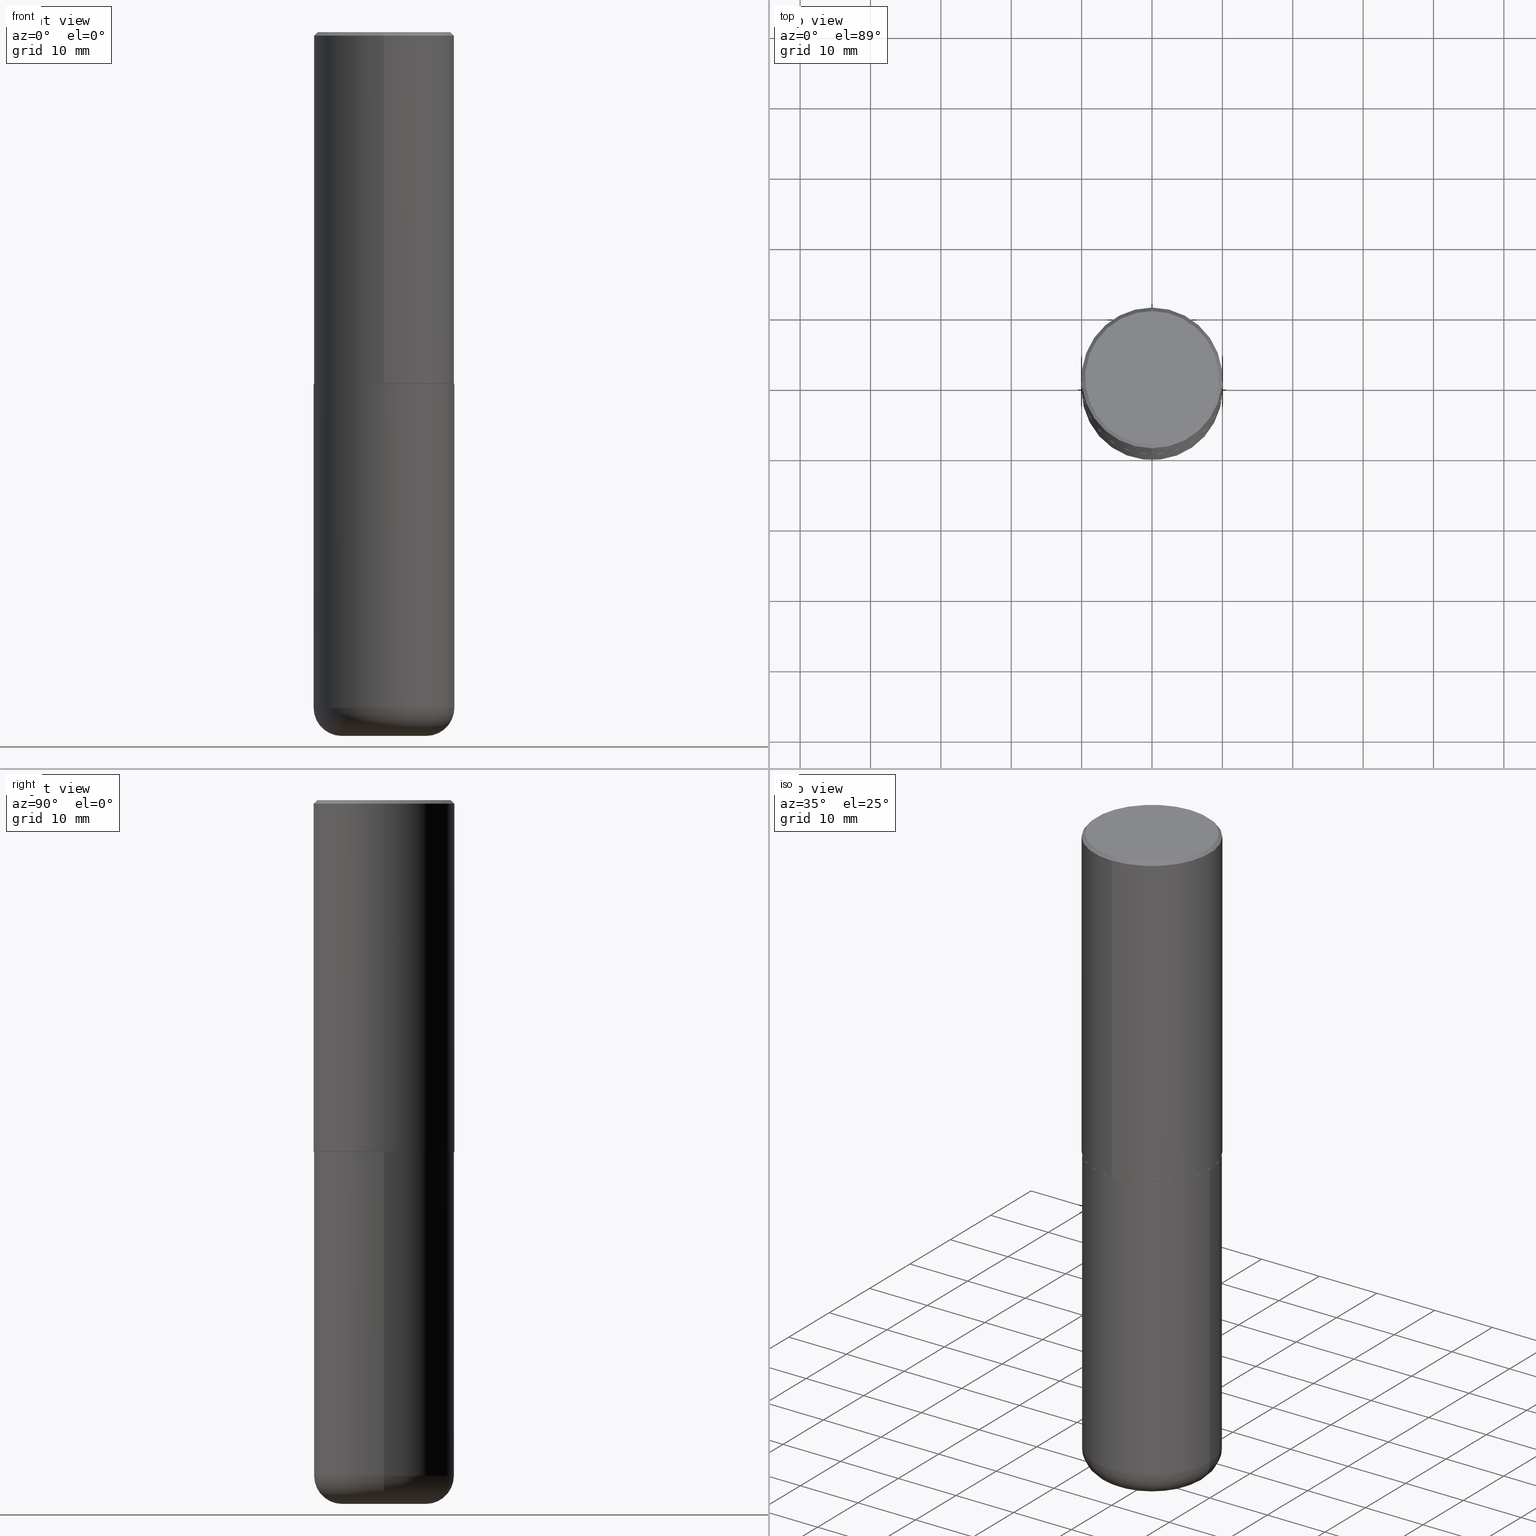
[diagram: canonical four-view strip — front | top / right | iso, engineering-drawing reading convention]
A machine part, canonical four-view strip (front | top / right | iso — engineering-drawing reading convention). The complete STEP part file that produces these views, byte-faithful:
ISO-10303-21;
HEADER;
FILE_DESCRIPTION (( 'STEP AP203' ),
    '1' );
FILE_NAME ('74812.STEP',
    '2024-05-02T19:20:29',
    ( '' ),
    ( '' ),
    'SwSTEP 2.0',
    'SolidWorks 2023',
    '' );
FILE_SCHEMA (( 'CONFIG_CONTROL_DESIGN' ));
ENDSEC;

DATA;
#1 = DIRECTION ( 'NONE',  ( -2.447902336346030930E-29, 3.487996385144809755E-15, 1.000000000000000000 ) ) ;
#2 = PERSON_AND_ORGANIZATION ( #285, #391 ) ;
#3 = CARTESIAN_POINT ( 'NONE',  ( -0.3936999999999999389, 2.797406750687513998E-15, -1.936584745033356455E-29 ) ) ;
#4 = LINE ( 'NONE', #3, #154 ) ;
#5 = FACE_OUTER_BOUND ( 'NONE', #20, .T. ) ;
#6 = CC_DESIGN_PERSON_AND_ORGANIZATION_ASSIGNMENT ( #166, #230, ( #67 ) ) ;
#7 = AXIS2_PLACEMENT_3D ( 'NONE', #355, #190, #319 ) ;
#8 = VERTEX_POINT ( 'NONE', #328 ) ;
#9 = FACE_OUTER_BOUND ( 'NONE', #177, .T. ) ;
#10 = APPROVAL_ROLE ( '' ) ;
#11 = APPLICATION_PROTOCOL_DEFINITION ( 'international standard', 'config_control_design', 1994, #121 ) ;
#12 = DATE_AND_TIME ( #316, #248 ) ;
#13 = DIRECTION ( 'NONE',  ( -2.445468806185136597E-29, 3.491481338843145583E-15, 1.000000000000000000 ) ) ;
#14 = ADVANCED_FACE ( 'NONE', ( #387 ), #93, .F. ) ;
#15 = DIRECTION ( 'NONE',  ( -2.447902336346030930E-29, 3.487996385144809755E-15, 1.000000000000000000 ) ) ;
#16 = EDGE_LOOP ( 'NONE', ( #162, #196, #290, #338 ) ) ;
#17 = VERTEX_POINT ( 'NONE', #155 ) ;
#18 = CIRCLE ( 'NONE', #219, 0.3937000000000001054 ) ;
#19 = CIRCLE ( 'NONE', #240, 0.3936999999999999389 ) ;
#20 = EDGE_LOOP ( 'NONE', ( #44, #86, #200, #47 ) ) ;
#21 = EDGE_LOOP ( 'NONE', ( #25, #348 ) ) ;
#22 = ORIENTED_EDGE ( 'NONE', *, *, #321, .T. ) ;
#23 = AXIS2_PLACEMENT_3D ( 'NONE', #249, #274, #401 ) ;
#24 = CARTESIAN_POINT ( 'NONE',  ( 4.818695749097161561E-29, -6.866120884157558352E-15, -1.968500000000000139 ) ) ;
#25 = ORIENTED_EDGE ( 'NONE', *, *, #263, .F. ) ;
#26 = DIRECTION ( 'NONE',  ( 2.447902336346030930E-29, -3.487996385144809360E-15, -1.000000000000000000 ) ) ;
#27 = DIRECTION ( 'NONE',  ( 1.000000000000000000, -6.982962677686265133E-15, 0.000000000000000000 ) ) ;
#28 = CARTESIAN_POINT ( 'NONE',  ( 2.749192406205084005E-15, 0.3937000000000000499, -0.02000000000000146105 ) ) ;
#29 = PLANE ( 'NONE',  #382 ) ;
#30 = CIRCLE ( 'NONE', #139, 0.3936999999999999389 ) ;
#31 = CIRCLE ( 'NONE', #78, 0.1575000000000003342 ) ;
#32 = DIRECTION ( 'NONE',  ( -2.445468806185136877E-29, 3.491481338843145188E-15, 1.000000000000000000 ) ) ;
#33 = EDGE_CURVE ( 'NONE', #17, #266, #18, .T. ) ;
#34 = DIRECTION ( 'NONE',  ( -6.982962677686265133E-15, -1.000000000000000000, 3.491137977679279029E-15 ) ) ;
#35 = DIRECTION ( 'NONE',  ( -6.982962677686266711E-15, -1.000000000000000000, 3.491481338843145583E-15 ) ) ;
#36 = CARTESIAN_POINT ( 'NONE',  ( 0.000000000000000000, 0.000000000000000000, 0.000000000000000000 ) ) ;
#37 =( CONVERSION_BASED_UNIT ( 'INCH', #308 ) LENGTH_UNIT ( ) NAMED_UNIT ( #58 ) );
#38 = AXIS2_PLACEMENT_3D ( 'NONE', #118, #97, #299 ) ;
#39 = CC_DESIGN_SECURITY_CLASSIFICATION ( #261, ( #69 ) ) ;
#40 = CARTESIAN_POINT ( 'NONE',  ( 4.813905344975441835E-29, -6.872981015512731707E-15, -1.968500000000000139 ) ) ;
#41 = DIRECTION ( 'NONE',  ( -6.982962677686265922E-15, -1.000000000000000000, 3.487996385144809360E-15 ) ) ;
#42 = EDGE_LOOP ( 'NONE', ( #379, #371 ) ) ;
#43 = EDGE_CURVE ( 'NONE', #383, #223, #62, .T. ) ;
#44 = ORIENTED_EDGE ( 'NONE', *, *, #263, .T. ) ;
#45 = PERSON_AND_ORGANIZATION ( #285, #391 ) ;
#46 = SHAPE_DEFINITION_REPRESENTATION ( #64, #52 ) ;
#47 = ORIENTED_EDGE ( 'NONE', *, *, #341, .F. ) ;
#48 = DIRECTION ( 'NONE',  ( 5.024295867788576727E-15, 0.7071067811866224018, 0.7071067811864726327 ) ) ;
#49 = APPROVAL_ROLE ( '' ) ;
#50 = DIRECTION ( 'NONE',  ( -4.851104656540950075E-15, -0.7071067811865479058, -0.7071067811865471286 ) ) ;
#51 = ORIENTED_EDGE ( 'NONE', *, *, #409, .T. ) ;
#52 = ADVANCED_BREP_SHAPE_REPRESENTATION ( '74812', ( #362, #76, #146 ), #164 ) ;
#53 = CIRCLE ( 'NONE', #300, 0.3937000000000000499 ) ;
#54 = EDGE_CURVE ( 'NONE', #122, #132, #60, .T. ) ;
#55 = ORIENTED_EDGE ( 'NONE', *, *, #156, .T. ) ;
#56 = VERTEX_POINT ( 'NONE', #68 ) ;
#57 = VERTEX_POINT ( 'NONE', #317 ) ;
#58 = DIMENSIONAL_EXPONENTS ( 1.000000000000000000, 0.000000000000000000, 0.000000000000000000, 0.000000000000000000, 0.000000000000000000, 0.000000000000000000, 0.000000000000000000 ) ;
#59 = ADVANCED_FACE ( 'NONE', ( #112 ), #211, .T. ) ;
#60 = LINE ( 'NONE', #63, #87 ) ;
#61 = EDGE_CURVE ( 'NONE', #226, #56, #393, .T. ) ;
#62 = CIRCLE ( 'NONE', #38, 0.3736999999999999211 ) ;
#63 = CARTESIAN_POINT ( 'NONE',  ( -2.742209443527348687E-15, -0.3927000000000069324, -1.968499999999998584 ) ) ;
#64 = PRODUCT_DEFINITION_SHAPE ( 'NONE', 'NONE',  #67 ) ;
#65 = PLANE ( 'NONE',  #270 ) ;
#66 = AXIS2_PLACEMENT_3D ( 'NONE', #318, #284, #84 ) ;
#67 = PRODUCT_DEFINITION ( 'UNKNOWN', '', #69, #170 ) ;
#68 = CARTESIAN_POINT ( 'NONE',  ( 0.2362000000000000766, -1.539533781549496310E-14, -3.937000000000000721 ) ) ;
#69 = PRODUCT_DEFINITION_FORMATION_WITH_SPECIFIED_SOURCE ( 'ANY', '', #109, .NOT_KNOWN. ) ;
#70 = CARTESIAN_POINT ( 'NONE',  ( 4.895804672692082949E-31, -6.975992770289649092E-17, -0.02000000000000008715 ) ) ;
#71 = ORIENTED_EDGE ( 'NONE', *, *, #85, .T. ) ;
#72 = CARTESIAN_POINT ( 'NONE',  ( 9.242649352976724072E-29, -1.319605372015766849E-14, -3.779500000000000082 ) ) ;
#73 =( NAMED_UNIT ( * ) PLANE_ANGLE_UNIT ( ) SI_UNIT ( $, .RADIAN. ) );
#74 = VERTEX_POINT ( 'NONE', #369 ) ;
#75 = DIRECTION ( 'NONE',  ( 1.000000000000000000, -6.982962677686265133E-15, 0.000000000000000000 ) ) ;
#76 = MANIFOLD_SOLID_BREP ( 'Body-Move/Copy2[2]', #269 ) ;
#77 = EDGE_CURVE ( 'NONE', #398, #8, #53, .T. ) ;
#78 = AXIS2_PLACEMENT_3D ( 'NONE', #117, #35, #212 ) ;
#79 = CARTESIAN_POINT ( 'NONE',  ( 2.790301323329961110E-15, 0.3926999999999931101, -1.968500000000001471 ) ) ;
#80 = DIRECTION ( 'NONE',  ( 0.000000000000000000, 0.000000000000000000, 1.000000000000000000 ) ) ;
#81 = LINE ( 'NONE', #378, #294 ) ;
#82 = ORIENTED_EDGE ( 'NONE', *, *, #91, .F. ) ;
#83 = DIRECTION ( 'NONE',  ( 6.982962677686265133E-15, 1.000000000000000000, -3.491137977679279029E-15 ) ) ;
#84 = DIRECTION ( 'NONE',  ( 1.000000000000000000, -6.982962677686266711E-15, 4.883557194083112340E-29 ) ) ;
#85 = EDGE_CURVE ( 'NONE', #383, #17, #81, .T. ) ;
#86 = ORIENTED_EDGE ( 'NONE', *, *, #147, .T. ) ;
#87 = VECTOR ( 'NONE', #222, 39.37007874015748143 ) ;
#88 = CONICAL_SURFACE ( 'NONE', #133, 0.3937000000000001054, 0.7853981633974453924 ) ;
#89 = ORIENTED_EDGE ( 'NONE', *, *, #43, .F. ) ;
#90 = DIRECTION ( 'NONE',  ( -6.982962677686265133E-15, -1.000000000000000000, 3.478288761986584267E-15 ) ) ;
#91 = EDGE_CURVE ( 'NONE', #122, #402, #353, .T. ) ;
#92 = PERSON_AND_ORGANIZATION_ROLE ( 'design_supplier' ) ;
#93 = PLANE ( 'NONE',  #7 ) ;
#94 = DIRECTION ( 'NONE',  ( -2.447902336346030930E-29, 3.487996385144809755E-15, 1.000000000000000000 ) ) ;
#95 = DIRECTION ( 'NONE',  ( -6.982962677686265922E-15, -1.000000000000000000, 3.469453890861393601E-15 ) ) ;
#96 = DIRECTION ( 'NONE',  ( -2.447902336346030930E-29, 3.487996385144809755E-15, 1.000000000000000000 ) ) ;
#97 = DIRECTION ( 'NONE',  ( -2.447902336346030930E-29, 3.487996385144809755E-15, 1.000000000000000000 ) ) ;
#98 = CYLINDRICAL_SURFACE ( 'NONE', #228, 0.3937000000000002164 ) ;
#99 = VECTOR ( 'NONE', #32, 39.37007874015748143 ) ;
#100 = CARTESIAN_POINT ( 'NONE',  ( 2.679362779428220707E-15, 0.3736999999999999211, -1.078535414350361218E-15 ) ) ;
#101 = CARTESIAN_POINT ( 'NONE',  ( 9.627810689950884790E-29, -1.374596203102546657E-14, -3.937000000000000721 ) ) ;
#102 = CARTESIAN_POINT ( 'NONE',  ( -2.632373081744936315E-15, -0.3736999999999999211, 1.528393083906868747E-15 ) ) ;
#103 = DIRECTION ( 'NONE',  ( 1.000000000000000000, -6.982962677686266711E-15, 4.883557194083112340E-29 ) ) ;
#104 = APPROVAL ( #375, 'UNSPECIFIED' ) ;
#105 = ORIENTED_EDGE ( 'NONE', *, *, #110, .F. ) ;
#106 = CARTESIAN_POINT ( 'NONE',  ( -0.3937000000000000499, -7.237110617147687679E-15, -1.968500000000000139 ) ) ;
#107 = CIRCLE ( 'NONE', #114, 0.3926999999999999935 ) ;
#108 = CC_DESIGN_APPROVAL ( #104, ( #261 ) ) ;
#109 = PRODUCT ( '74812', '74812', '', ( #152 ) ) ;
#110 = EDGE_CURVE ( 'NONE', #132, #17, #278, .T. ) ;
#111 = CARTESIAN_POINT ( 'NONE',  ( 0.000000000000000000, 0.000000000000000000, 0.000000000000000000 ) ) ;
#112 = FACE_OUTER_BOUND ( 'NONE', #380, .T. ) ;
#113 = ORIENTED_EDGE ( 'NONE', *, *, #206, .T. ) ;
#114 = AXIS2_PLACEMENT_3D ( 'NONE', #236, #332, #416 ) ;
#115 = APPROVAL_PERSON_ORGANIZATION ( #45, #363, #10 ) ;
#116 = EDGE_LOOP ( 'NONE', ( #22, #141, #385, #198 ) ) ;
#117 = CARTESIAN_POINT ( 'NONE',  ( 0.2362000000000000210, -1.484542950462716502E-14, -3.779500000000000082 ) ) ;
#118 = CARTESIAN_POINT ( 'NONE',  ( -5.506038201652776757E-45, 7.845509626213831500E-31, 2.249288347782537153E-16 ) ) ;
#119 = APPROVAL_ROLE ( '' ) ;
#120 = EDGE_CURVE ( 'NONE', #57, #266, #357, .T. ) ;
#121 = APPLICATION_CONTEXT ( 'configuration controlled 3d designs of mechanical parts and assemblies' ) ;
#122 = VERTEX_POINT ( 'NONE', #204 ) ;
#123 = EDGE_LOOP ( 'NONE', ( #286, #187, #376, #252 ) ) ;
#124 = CIRCLE ( 'NONE', #239, 0.3937000000000002720 ) ;
#125 = CONICAL_SURFACE ( 'NONE', #389, 0.3926999999999999935, 0.7853981633975507526 ) ;
#126 = CALENDAR_DATE ( 2024, 2, 5 ) ;
#127 = EDGE_LOOP ( 'NONE', ( #82, #396 ) ) ;
#128 = CC_DESIGN_PERSON_AND_ORGANIZATION_ASSIGNMENT ( #129, #92, ( #69 ) ) ;
#129 = PERSON_AND_ORGANIZATION ( #285, #391 ) ;
#130 = DIRECTION ( 'NONE',  ( -6.982962677686265133E-15, -1.000000000000000000, 3.478288761986584267E-15 ) ) ;
#131 = CALENDAR_DATE ( 2024, 2, 5 ) ;
#132 = VERTEX_POINT ( 'NONE', #390 ) ;
#133 = AXIS2_PLACEMENT_3D ( 'NONE', #70, #135, #307 ) ;
#134 = CARTESIAN_POINT ( 'NONE',  ( 0.3936999999999999389, -2.749192406205082822E-15, 1.919750796630859611E-29 ) ) ;
#135 = DIRECTION ( 'NONE',  ( 2.447902336346030930E-29, -3.487996385144809755E-15, -1.000000000000000000 ) ) ;
#136 = CARTESIAN_POINT ( 'NONE',  ( 2.749192406205084005E-15, 0.3937000000000000499, -0.02000000000000146105 ) ) ;
#137 = CARTESIAN_POINT ( 'NONE',  ( 4.816247846760815671E-29, -6.862632887772413316E-15, -1.967500000000000027 ) ) ;
#138 = DIRECTION ( 'NONE',  ( -6.982962677686265133E-15, -1.000000000000000000, 3.487996385144809755E-15 ) ) ;
#139 = AXIS2_PLACEMENT_3D ( 'NONE', #199, #331, #27 ) ;
#140 = EDGE_CURVE ( 'NONE', #402, #122, #107, .T. ) ;
#141 = ORIENTED_EDGE ( 'NONE', *, *, #370, .T. ) ;
#142 = DIRECTION ( 'NONE',  ( -2.445468806185136877E-29, 3.491481338843145188E-15, 1.000000000000000000 ) ) ;
#143 = ADVANCED_FACE ( 'NONE', ( #161 ), #227, .T. ) ;
#144 = CARTESIAN_POINT ( 'NONE',  ( 3.268474738140231908E-29, -2.285289306494265052E-14, -3.937000000000000277 ) ) ;
#145 = CARTESIAN_POINT ( 'NONE',  ( 4.813905344975441835E-29, -6.872981015512731707E-15, -1.968500000000000139 ) ) ;
#146 = AXIS2_PLACEMENT_3D ( 'NONE', #148, #80, #400 ) ;
#147 = EDGE_CURVE ( 'NONE', #226, #74, #397, .T. ) ;
#148 = CARTESIAN_POINT ( 'NONE',  ( 0.000000000000000000, 0.000000000000000000, 0.000000000000000000 ) ) ;
#149 = ORIENTED_EDGE ( 'NONE', *, *, #370, .F. ) ;
#150 = APPLICATION_PROTOCOL_DEFINITION ( 'international standard', 'config_control_design', 1994, #159 ) ;
#151 = ORIENTED_EDGE ( 'NONE', *, *, #77, .F. ) ;
#152 = MECHANICAL_CONTEXT ( 'NONE', #159, 'mechanical' ) ;
#153 = TOROIDAL_SURFACE ( 'NONE', #66, 0.2362000000000000210, 0.1575000000000003064 ) ;
#154 = VECTOR ( 'NONE', #142, 39.37007874015748143 ) ;
#155 = CARTESIAN_POINT ( 'NONE',  ( -2.700978061722651647E-15, -0.3937000000000001609, -0.01999999999999870978 ) ) ;
#156 = EDGE_CURVE ( 'NONE', #74, #324, #30, .T. ) ;
#157 = ORIENTED_EDGE ( 'NONE', *, *, #33, .T. ) ;
#158 = ORIENTED_EDGE ( 'NONE', *, *, #169, .F. ) ;
#159 = APPLICATION_CONTEXT ( 'configuration controlled 3d designs of mechanical parts and assemblies' ) ;
#160 = ADVANCED_FACE ( 'NONE', ( #326 ), #125, .T. ) ;
#161 = FACE_OUTER_BOUND ( 'NONE', #340, .T. ) ;
#162 = ORIENTED_EDGE ( 'NONE', *, *, #91, .T. ) ;
#163 = VECTOR ( 'NONE', #48, 39.37007874015748143 ) ;
#164 =( GEOMETRIC_REPRESENTATION_CONTEXT ( 3 ) GLOBAL_UNCERTAINTY_ASSIGNED_CONTEXT ( ( #394 ) ) GLOBAL_UNIT_ASSIGNED_CONTEXT ( ( #37, #73, #399 ) ) REPRESENTATION_CONTEXT ( 'NONE', 'WORKASPACE' ) );
#165 = DIRECTION ( 'NONE',  ( -2.447902336346030930E-29, 3.487996385144809755E-15, 1.000000000000000000 ) ) ;
#166 = PERSON_AND_ORGANIZATION ( #285, #391 ) ;
#167 = COORDINATED_UNIVERSAL_TIME_OFFSET ( 5, 0, .BEHIND. ) ;
#168 = AXIS2_PLACEMENT_3D ( 'NONE', #175, #13, #279 ) ;
#169 = EDGE_CURVE ( 'NONE', #266, #17, #377, .T. ) ;
#170 = DESIGN_CONTEXT ( 'detailed design', #121, 'design' ) ;
#171 = EDGE_CURVE ( 'NONE', #57, #132, #124, .T. ) ;
#172 = DATE_TIME_ROLE ( 'classification_date' ) ;
#173 = CARTESIAN_POINT ( 'NONE',  ( -5.506038201652776757E-45, 7.845509626213831500E-31, 2.249288347782537153E-16 ) ) ;
#174 = DIRECTION ( 'NONE',  ( 1.000000000000000000, -6.982962677686265133E-15, 0.000000000000000000 ) ) ;
#175 = CARTESIAN_POINT ( 'NONE',  ( 9.627810689950884790E-29, -1.374596203102546657E-14, -3.937000000000000721 ) ) ;
#176 = PERSON_AND_ORGANIZATION_ROLE ( 'classification_officer' ) ;
#177 = EDGE_LOOP ( 'NONE', ( #244, #408, #231, #414 ) ) ;
#178 = DIRECTION ( 'NONE',  ( -2.445468806185136597E-29, 3.491481338843145583E-15, 1.000000000000000000 ) ) ;
#179 = CC_DESIGN_PERSON_AND_ORGANIZATION_ASSIGNMENT ( #388, #352, ( #69 ) ) ;
#180 = ORIENTED_EDGE ( 'NONE', *, *, #120, .F. ) ;
#181 = AXIS2_PLACEMENT_3D ( 'NONE', #298, #1, #241 ) ;
#182 = APPROVAL_PERSON_ORGANIZATION ( #2, #104, #49 ) ;
#183 = DIRECTION ( 'NONE',  ( -2.445468806185136597E-29, 3.491481338843145583E-15, 1.000000000000000000 ) ) ;
#184 = AXIS2_PLACEMENT_3D ( 'NONE', #36, #267, #245 ) ;
#185 = PERSON_AND_ORGANIZATION ( #285, #391 ) ;
#186 = PLANE ( 'NONE',  #366 ) ;
#187 = ORIENTED_EDGE ( 'NONE', *, *, #346, .F. ) ;
#188 = FACE_OUTER_BOUND ( 'NONE', #42, .T. ) ;
#189 = CC_DESIGN_PERSON_AND_ORGANIZATION_ASSIGNMENT ( #185, #176, ( #261 ) ) ;
#190 = DIRECTION ( 'NONE',  ( -2.447902336346030930E-29, 3.487996385144809360E-15, 1.000000000000000000 ) ) ;
#191 = CARTESIAN_POINT ( 'NONE',  ( 4.895804672692082949E-31, -6.975992770289649092E-17, -0.02000000000000008715 ) ) ;
#192 = CIRCLE ( 'NONE', #417, 0.2362000000000000766 ) ;
#193 = LOCAL_TIME ( 15, 20, 29.00000000000000000, #215 ) ;
#194 = DIRECTION ( 'NONE',  ( -6.982962677686265133E-15, -1.000000000000000000, 3.491137977679279029E-15 ) ) ;
#195 = DATE_AND_TIME ( #126, #193 ) ;
#196 = ORIENTED_EDGE ( 'NONE', *, *, #243, .T. ) ;
#197 = EDGE_CURVE ( 'NONE', #223, #266, #237, .T. ) ;
#198 = ORIENTED_EDGE ( 'NONE', *, *, #206, .F. ) ;
#199 = CARTESIAN_POINT ( 'NONE',  ( 9.242649352976724072E-29, -1.319605372015766849E-14, -3.779500000000000082 ) ) ;
#200 = ORIENTED_EDGE ( 'NONE', *, *, #321, .F. ) ;
#201 = CONICAL_SURFACE ( 'NONE', #260, 0.3937000000000001054, 0.7853981633974453924 ) ;
#202 = APPROVAL_STATUS ( 'not_yet_approved' ) ;
#203 = CALENDAR_DATE ( 2024, 2, 5 ) ;
#204 = CARTESIAN_POINT ( 'NONE',  ( -2.742209443527348687E-15, -0.3927000000000069324, -1.968499999999998584 ) ) ;
#205 = LOCAL_TIME ( 15, 20, 29.00000000000000000, #272 ) ;
#206 = EDGE_CURVE ( 'NONE', #324, #8, #358, .T. ) ;
#207 = CALENDAR_DATE ( 2024, 2, 5 ) ;
#208 = DIRECTION ( 'NONE',  ( 2.438088387897960049E-29, -3.491481338843145188E-15, -1.000000000000000000 ) ) ;
#209 = VECTOR ( 'NONE', #262, 39.37007874015748143 ) ;
#210 = TOROIDAL_SURFACE ( 'NONE', #412, 0.2362000000000000210, 0.1575000000000003064 ) ;
#211 = CYLINDRICAL_SURFACE ( 'NONE', #287, 0.3937000000000002164 ) ;
#212 = DIRECTION ( 'NONE',  ( 1.000000000000000000, -6.982962677686271444E-15, 0.000000000000000000 ) ) ;
#213 = DIRECTION ( 'NONE',  ( -1.000000000000000000, 6.982962677686265922E-15, -4.876176775795935793E-29 ) ) ;
#214 = DIRECTION ( 'NONE',  ( -2.447902336346030930E-29, 3.487996385144809755E-15, 1.000000000000000000 ) ) ;
#215 = COORDINATED_UNIVERSAL_TIME_OFFSET ( 5, 0, .BEHIND. ) ;
#216 = DIRECTION ( 'NONE',  ( 2.447902336346030930E-29, -3.487996385144809755E-15, -1.000000000000000000 ) ) ;
#217 = LINE ( 'NONE', #79, #163 ) ;
#218 = DIRECTION ( 'NONE',  ( 6.982962677686265922E-15, 1.000000000000000000, -3.487996385144809360E-15 ) ) ;
#219 = AXIS2_PLACEMENT_3D ( 'NONE', #283, #407, #194 ) ;
#220 = APPROVAL_STATUS ( 'not_yet_approved' ) ;
#221 = LOCAL_TIME ( 15, 20, 29.00000000000000000, #247 ) ;
#222 = DIRECTION ( 'NONE',  ( -4.937700262165053702E-15, -0.7071067811866175168, 0.7071067811864775177 ) ) ;
#223 = VERTEX_POINT ( 'NONE', #100 ) ;
#224 = CC_DESIGN_PERSON_AND_ORGANIZATION_ASSIGNMENT ( #343, #314, ( #109 ) ) ;
#225 = DIRECTION ( 'NONE',  ( 1.000000000000000000, -6.982962677686265133E-15, 0.000000000000000000 ) ) ;
#226 = VERTEX_POINT ( 'NONE', #361 ) ;
#227 = CONICAL_SURFACE ( 'NONE', #404, 0.3926999999999999935, 0.7853981633975507526 ) ;
#228 = AXIS2_PLACEMENT_3D ( 'NONE', #111, #15, #276 ) ;
#229 = EDGE_CURVE ( 'NONE', #132, #57, #360, .T. ) ;
#230 = PERSON_AND_ORGANIZATION_ROLE ( 'creator' ) ;
#231 = ORIENTED_EDGE ( 'NONE', *, *, #341, .T. ) ;
#232 = DATE_TIME_ROLE ( 'creation_date' ) ;
#233 = EDGE_LOOP ( 'NONE', ( #89, #71, #157, #410 ) ) ;
#234 = APPROVAL_PERSON_ORGANIZATION ( #296, #336, #119 ) ;
#235 = ADVANCED_FACE ( 'NONE', ( #342 ), #201, .T. ) ;
#236 = CARTESIAN_POINT ( 'NONE',  ( 4.818695749097161561E-29, -6.866120884157558352E-15, -1.968500000000000139 ) ) ;
#237 = LINE ( 'NONE', #28, #209 ) ;
#238 = DIRECTION ( 'NONE',  ( -2.447902336346030930E-29, 3.487996385144809755E-15, 1.000000000000000000 ) ) ;
#239 = AXIS2_PLACEMENT_3D ( 'NONE', #137, #238, #95 ) ;
#240 = AXIS2_PLACEMENT_3D ( 'NONE', #268, #373, #75 ) ;
#241 = DIRECTION ( 'NONE',  ( -6.982962677686265922E-15, -1.000000000000000000, 3.469453890861393601E-15 ) ) ;
#242 = FACE_OUTER_BOUND ( 'NONE', #233, .T. ) ;
#243 = EDGE_CURVE ( 'NONE', #402, #57, #217, .T. ) ;
#244 = ORIENTED_EDGE ( 'NONE', *, *, #147, .F. ) ;
#245 = DIRECTION ( 'NONE',  ( 1.000000000000000000, -6.982962677686266711E-15, 4.876176775795935793E-29 ) ) ;
#246 = ADVANCED_FACE ( 'NONE', ( #9 ), #153, .T. ) ;
#247 = COORDINATED_UNIVERSAL_TIME_OFFSET ( 5, 0, .BEHIND. ) ;
#248 = LOCAL_TIME ( 15, 20, 29.00000000000000000, #273 ) ;
#249 = CARTESIAN_POINT ( 'NONE',  ( 4.818695749097161561E-29, -6.866120884157558352E-15, -1.968500000000000139 ) ) ;
#250 = EDGE_LOOP ( 'NONE', ( #149, #55, #113, #151 ) ) ;
#251 = ORIENTED_EDGE ( 'NONE', *, *, #110, .T. ) ;
#252 = ORIENTED_EDGE ( 'NONE', *, *, #169, .T. ) ;
#253 = ORIENTED_EDGE ( 'NONE', *, *, #171, .T. ) ;
#254 = CARTESIAN_POINT ( 'NONE',  ( 4.818695749097161561E-29, -6.866120884157558352E-15, -1.968500000000000139 ) ) ;
#255 = ORIENTED_EDGE ( 'NONE', *, *, #229, .T. ) ;
#256 = DATE_AND_TIME ( #207, #205 ) ;
#257 = ORIENTED_EDGE ( 'NONE', *, *, #54, .T. ) ;
#258 = APPROVAL_DATE_TIME ( #330, #336 ) ;
#259 = ADVANCED_FACE ( 'NONE', ( #188 ), #186, .F. ) ;
#260 = AXIS2_PLACEMENT_3D ( 'NONE', #191, #216, #83 ) ;
#261 = SECURITY_CLASSIFICATION ( '', '', #386 ) ;
#262 = DIRECTION ( 'NONE',  ( 4.937700262164533054E-15, 0.7071067811865430208, -0.7071067811865520136 ) ) ;
#263 = EDGE_CURVE ( 'NONE', #56, #226, #192, .T. ) ;
#264 = FACE_OUTER_BOUND ( 'NONE', #349, .T. ) ;
#265 = DIRECTION ( 'NONE',  ( -2.445468806185136597E-29, 3.491481338843145583E-15, 1.000000000000000000 ) ) ;
#266 = VERTEX_POINT ( 'NONE', #136 ) ;
#267 = DIRECTION ( 'NONE',  ( -2.445468806185136597E-29, 3.491481338843145583E-15, 1.000000000000000000 ) ) ;
#268 = CARTESIAN_POINT ( 'NONE',  ( 9.242649352976724072E-29, -1.319605372015766849E-14, -3.779500000000000082 ) ) ;
#269 = CLOSED_SHELL ( 'NONE', ( #160, #59, #351, #235, #384, #143, #14, #259 ) ) ;
#270 = AXIS2_PLACEMENT_3D ( 'NONE', #367, #208, #213 ) ;
#271 = DIRECTION ( 'NONE',  ( 2.438088387897960049E-29, -3.491481338843145188E-15, -1.000000000000000000 ) ) ;
#272 = COORDINATED_UNIVERSAL_TIME_OFFSET ( 5, 0, .BEHIND. ) ;
#273 = COORDINATED_UNIVERSAL_TIME_OFFSET ( 5, 0, .BEHIND. ) ;
#274 = DIRECTION ( 'NONE',  ( -2.447902336346030930E-29, 3.487996385144809755E-15, 1.000000000000000000 ) ) ;
#275 = ADVANCED_FACE ( 'NONE', ( #310 ), #29, .T. ) ;
#276 = DIRECTION ( 'NONE',  ( -6.982962677686265922E-15, -1.000000000000000000, 3.487996385144809360E-15 ) ) ;
#277 = CARTESIAN_POINT ( 'NONE',  ( 0.3937000000000001609, -1.594524612636275171E-14, -3.779500000000000082 ) ) ;
#278 = LINE ( 'NONE', #413, #325 ) ;
#279 = DIRECTION ( 'NONE',  ( 1.000000000000000000, -6.982962677686270655E-15, 0.000000000000000000 ) ) ;
#280 = ORIENTED_EDGE ( 'NONE', *, *, #33, .F. ) ;
#281 = AXIS2_PLACEMENT_3D ( 'NONE', #289, #293, #356 ) ;
#282 = AXIS2_PLACEMENT_3D ( 'NONE', #374, #309, #302 ) ;
#283 = CARTESIAN_POINT ( 'NONE',  ( 4.895804672692082949E-31, -6.975992770289649092E-17, -0.02000000000000008715 ) ) ;
#284 = DIRECTION ( 'NONE',  ( -2.445468806185136597E-29, 3.491481338843145583E-15, 1.000000000000000000 ) ) ;
#285 = PERSON ( 'UNSPECIFIED', 'UNSPECIFIED', 'UNSPECIFIED', ('UNSPECIFIED'), ('UNSPECIFIED'), ('UNSPECIFIED') ) ;
#286 = ORIENTED_EDGE ( 'NONE', *, *, #85, .F. ) ;
#287 = AXIS2_PLACEMENT_3D ( 'NONE', #364, #214, #41 ) ;
#288 = ORIENTED_EDGE ( 'NONE', *, *, #243, .F. ) ;
#289 = CARTESIAN_POINT ( 'NONE',  ( -0.2362000000000000210, -1.151775177829231210E-14, -3.779500000000000082 ) ) ;
#290 = ORIENTED_EDGE ( 'NONE', *, *, #229, .F. ) ;
#291 = ADVANCED_FACE ( 'NONE', ( #418 ), #335, .T. ) ;
#292 = DIRECTION ( 'NONE',  ( -2.447902336346030930E-29, 3.487996385144809360E-15, 1.000000000000000000 ) ) ;
#293 = DIRECTION ( 'NONE',  ( 7.105427357601001859E-15, 1.000000000000000000, -3.491481338843145583E-15 ) ) ;
#294 = VECTOR ( 'NONE', #50, 39.37007874015748143 ) ;
#295 = DIRECTION ( 'NONE',  ( -1.000000000000000000, 6.982962677686265922E-15, -4.876176775795935793E-29 ) ) ;
#296 = PERSON_AND_ORGANIZATION ( #285, #391 ) ;
#297 = ADVANCED_FACE ( 'NONE', ( #5 ), #210, .T. ) ;
#298 = CARTESIAN_POINT ( 'NONE',  ( 4.816247846760815671E-29, -6.862632887772413316E-15, -1.967500000000000027 ) ) ;
#299 = DIRECTION ( 'NONE',  ( -6.982962677686265133E-15, -1.000000000000000000, 3.487996385144809755E-15 ) ) ;
#300 = AXIS2_PLACEMENT_3D ( 'NONE', #145, #345, #225 ) ;
#301 = AXIS2_PLACEMENT_3D ( 'NONE', #40, #178, #174 ) ;
#302 = DIRECTION ( 'NONE',  ( 1.000000000000000000, -6.982962677686266711E-15, 4.876176775795935793E-29 ) ) ;
#303 = DIRECTION ( 'NONE',  ( -2.447902336346030930E-29, 3.487996385144809755E-15, 1.000000000000000000 ) ) ;
#304 = ORIENTED_EDGE ( 'NONE', *, *, #77, .T. ) ;
#305 = ADVANCED_FACE ( 'NONE', ( #334 ), #365, .T. ) ;
#306 =( LENGTH_UNIT ( ) NAMED_UNIT ( * ) SI_UNIT ( $, .METRE. ) );
#307 = DIRECTION ( 'NONE',  ( 6.982962677686265133E-15, 1.000000000000000000, -3.491137977679279029E-15 ) ) ;
#308 = LENGTH_MEASURE_WITH_UNIT ( LENGTH_MEASURE( 0.02539999999999999897 ), #306 );
#309 = DIRECTION ( 'NONE',  ( -2.445468806185136597E-29, 3.491481338843145583E-15, 1.000000000000000000 ) ) ;
#310 = FACE_OUTER_BOUND ( 'NONE', #21, .T. ) ;
#311 = ORIENTED_EDGE ( 'NONE', *, *, #171, .F. ) ;
#312 = AXIS2_PLACEMENT_3D ( 'NONE', #333, #96, #34 ) ;
#313 = CC_DESIGN_DATE_AND_TIME_ASSIGNMENT ( #256, #172, ( #261 ) ) ;
#314 = PERSON_AND_ORGANIZATION_ROLE ( 'design_owner' ) ;
#315 = CARTESIAN_POINT ( 'NONE',  ( 2.609533152651356620E-15, 0.3736999999999999211, -1.190999831739488445E-15 ) ) ;
#316 = CALENDAR_DATE ( 2024, 2, 5 ) ;
#317 = CARTESIAN_POINT ( 'NONE',  ( 2.797406750687540424E-15, 0.3936999999999934441, -1.967500000000001359 ) ) ;
#318 = CARTESIAN_POINT ( 'NONE',  ( 9.242649352976724072E-29, -1.319605372015766849E-14, -3.779500000000000082 ) ) ;
#319 = DIRECTION ( 'NONE',  ( -6.982962677686265922E-15, -1.000000000000000000, 3.487996385144809360E-15 ) ) ;
#320 = CC_DESIGN_APPROVAL ( #336, ( #69 ) ) ;
#321 = EDGE_CURVE ( 'NONE', #324, #74, #19, .T. ) ;
#322 = APPROVAL_DATE_TIME ( #195, #104 ) ;
#323 = CARTESIAN_POINT ( 'NONE',  ( 2.797406750687515575E-15, 0.3937000000000002164, -1.373224176831512262E-15 ) ) ;
#324 = VERTEX_POINT ( 'NONE', #277 ) ;
#325 = VECTOR ( 'NONE', #350, 39.37007874015748143 ) ;
#326 = FACE_OUTER_BOUND ( 'NONE', #16, .T. ) ;
#327 = APPROVAL_DATE_TIME ( #12, #363 ) ;
#328 = CARTESIAN_POINT ( 'NONE',  ( 0.3937000000000000499, -9.622173421717814924E-15, -1.968500000000000139 ) ) ;
#329 = DATE_AND_TIME ( #131, #368 ) ;
#330 = DATE_AND_TIME ( #203, #221 ) ;
#331 = DIRECTION ( 'NONE',  ( -2.445468806185136597E-29, 3.491481338843145583E-15, 1.000000000000000000 ) ) ;
#332 = DIRECTION ( 'NONE',  ( -2.447902336346030930E-29, 3.487996385144809755E-15, 1.000000000000000000 ) ) ;
#333 = CARTESIAN_POINT ( 'NONE',  ( 4.895804672692082949E-31, -6.975992770289649092E-17, -0.02000000000000008715 ) ) ;
#334 = FACE_OUTER_BOUND ( 'NONE', #116, .T. ) ;
#335 = CYLINDRICAL_SURFACE ( 'NONE', #282, 0.3936999999999999389 ) ;
#336 = APPROVAL ( #202, 'UNSPECIFIED' ) ;
#337 = AXIS2_PLACEMENT_3D ( 'NONE', #173, #303, #138 ) ;
#338 = ORIENTED_EDGE ( 'NONE', *, *, #54, .F. ) ;
#339 = DIRECTION ( 'NONE',  ( 1.000000000000000000, -6.982962677686270655E-15, 0.000000000000000000 ) ) ;
#340 = EDGE_LOOP ( 'NONE', ( #288, #403, #257, #311 ) ) ;
#341 = EDGE_CURVE ( 'NONE', #56, #324, #31, .T. ) ;
#342 = FACE_OUTER_BOUND ( 'NONE', #123, .T. ) ;
#343 = PERSON_AND_ORGANIZATION ( #285, #391 ) ;
#344 = EDGE_LOOP ( 'NONE', ( #51, #304 ) ) ;
#345 = DIRECTION ( 'NONE',  ( -2.445468806185136597E-29, 3.491481338843145583E-15, 1.000000000000000000 ) ) ;
#346 = EDGE_CURVE ( 'NONE', #223, #383, #395, .T. ) ;
#347 = FACE_OUTER_BOUND ( 'NONE', #344, .T. ) ;
#348 = ORIENTED_EDGE ( 'NONE', *, *, #61, .F. ) ;
#349 = EDGE_LOOP ( 'NONE', ( #180, #253, #251, #158 ) ) ;
#350 = DIRECTION ( 'NONE',  ( -2.447902336346030930E-29, 3.487996385144809360E-15, 1.000000000000000000 ) ) ;
#351 = ADVANCED_FACE ( 'NONE', ( #242 ), #88, .T. ) ;
#352 = PERSON_AND_ORGANIZATION_ROLE ( 'creator' ) ;
#353 = CIRCLE ( 'NONE', #23, 0.3926999999999999935 ) ;
#354 = CIRCLE ( 'NONE', #301, 0.3937000000000000499 ) ;
#355 = CARTESIAN_POINT ( 'NONE',  ( 4.818695749097161561E-29, -6.866120884157558352E-15, -1.968500000000000139 ) ) ;
#356 = DIRECTION ( 'NONE',  ( -1.000000000000000000, 7.105427357601006592E-15, 0.000000000000000000 ) ) ;
#357 = LINE ( 'NONE', #323, #411 ) ;
#358 = LINE ( 'NONE', #134, #99 ) ;
#359 = PRODUCT_RELATED_PRODUCT_CATEGORY ( 'detail', '', ( #109 ) ) ;
#360 = CIRCLE ( 'NONE', #181, 0.3937000000000002720 ) ;
#361 = CARTESIAN_POINT ( 'NONE',  ( -0.2362000000000000766, -1.123315352931513155E-14, -3.937000000000000721 ) ) ;
#362 = MANIFOLD_SOLID_BREP ( 'Body-Move/Copy2[1]', #381 ) ;
#363 = APPROVAL ( #220, 'UNSPECIFIED' ) ;
#364 = CARTESIAN_POINT ( 'NONE',  ( 0.000000000000000000, 0.000000000000000000, 0.000000000000000000 ) ) ;
#365 = CYLINDRICAL_SURFACE ( 'NONE', #184, 0.3936999999999999389 ) ;
#366 = AXIS2_PLACEMENT_3D ( 'NONE', #315, #26, #218 ) ;
#367 = CARTESIAN_POINT ( 'NONE',  ( 4.813905344975441835E-29, -6.872981015512731707E-15, -1.968500000000000139 ) ) ;
#368 = LOCAL_TIME ( 15, 20, 29.00000000000000000, #167 ) ;
#369 = CARTESIAN_POINT ( 'NONE',  ( -0.3937000000000001609, -1.039864696947015292E-14, -3.779500000000000082 ) ) ;
#370 = EDGE_CURVE ( 'NONE', #74, #398, #4, .T. ) ;
#371 = ORIENTED_EDGE ( 'NONE', *, *, #43, .T. ) ;
#372 = CARTESIAN_POINT ( 'NONE',  ( 2.793854037008762403E-15, 0.3926999999999931101, -1.968500000000001471 ) ) ;
#373 = DIRECTION ( 'NONE',  ( -2.445468806185136597E-29, 3.491481338843145583E-15, 1.000000000000000000 ) ) ;
#374 = CARTESIAN_POINT ( 'NONE',  ( 0.000000000000000000, 0.000000000000000000, 0.000000000000000000 ) ) ;
#375 = APPROVAL_STATUS ( 'not_yet_approved' ) ;
#376 = ORIENTED_EDGE ( 'NONE', *, *, #197, .T. ) ;
#377 = CIRCLE ( 'NONE', #312, 0.3937000000000001054 ) ;
#378 = CARTESIAN_POINT ( 'NONE',  ( -2.700978061722651647E-15, -0.3937000000000001609, -0.01999999999999870978 ) ) ;
#379 = ORIENTED_EDGE ( 'NONE', *, *, #346, .T. ) ;
#380 = EDGE_LOOP ( 'NONE', ( #255, #415, #280, #105 ) ) ;
#381 = CLOSED_SHELL ( 'NONE', ( #305, #297, #392, #291, #246, #275 ) ) ;
#382 = AXIS2_PLACEMENT_3D ( 'NONE', #144, #271, #295 ) ;
#383 = VERTEX_POINT ( 'NONE', #102 ) ;
#384 = ADVANCED_FACE ( 'NONE', ( #264 ), #98, .T. ) ;
#385 = ORIENTED_EDGE ( 'NONE', *, *, #409, .F. ) ;
#386 = SECURITY_CLASSIFICATION_LEVEL ( 'unclassified' ) ;
#387 = FACE_OUTER_BOUND ( 'NONE', #127, .T. ) ;
#388 = PERSON_AND_ORGANIZATION ( #285, #391 ) ;
#389 = AXIS2_PLACEMENT_3D ( 'NONE', #24, #165, #130 ) ;
#390 = CARTESIAN_POINT ( 'NONE',  ( -2.749192406205036674E-15, -0.3937000000000070998, -1.967499999999998694 ) ) ;
#391 = ORGANIZATION ( 'UNSPECIFIED', 'UNSPECIFIED', '' ) ;
#392 = ADVANCED_FACE ( 'NONE', ( #347 ), #65, .F. ) ;
#393 = CIRCLE ( 'NONE', #168, 0.2362000000000000766 ) ;
#394 = UNCERTAINTY_MEASURE_WITH_UNIT (LENGTH_MEASURE( 1.000000000000000082E-05 ), #37, 'distance_accuracy_value', 'NONE');
#395 = CIRCLE ( 'NONE', #337, 0.3736999999999999211 ) ;
#396 = ORIENTED_EDGE ( 'NONE', *, *, #140, .F. ) ;
#397 = CIRCLE ( 'NONE', #281, 0.1575000000000003342 ) ;
#398 = VERTEX_POINT ( 'NONE', #106 ) ;
#399 =( NAMED_UNIT ( * ) SI_UNIT ( $, .STERADIAN. ) SOLID_ANGLE_UNIT ( ) );
#400 = DIRECTION ( 'NONE',  ( 1.000000000000000000, 0.000000000000000000, 0.000000000000000000 ) ) ;
#401 = DIRECTION ( 'NONE',  ( -6.982962677686265133E-15, -1.000000000000000000, 3.478288761986584267E-15 ) ) ;
#402 = VERTEX_POINT ( 'NONE', #372 ) ;
#403 = ORIENTED_EDGE ( 'NONE', *, *, #140, .T. ) ;
#404 = AXIS2_PLACEMENT_3D ( 'NONE', #254, #94, #90 ) ;
#405 = CC_DESIGN_DATE_AND_TIME_ASSIGNMENT ( #329, #232, ( #67 ) ) ;
#406 = CC_DESIGN_APPROVAL ( #363, ( #67 ) ) ;
#407 = DIRECTION ( 'NONE',  ( -2.447902336346030930E-29, 3.487996385144809755E-15, 1.000000000000000000 ) ) ;
#408 = ORIENTED_EDGE ( 'NONE', *, *, #61, .T. ) ;
#409 = EDGE_CURVE ( 'NONE', #8, #398, #354, .T. ) ;
#410 = ORIENTED_EDGE ( 'NONE', *, *, #197, .F. ) ;
#411 = VECTOR ( 'NONE', #292, 39.37007874015748143 ) ;
#412 = AXIS2_PLACEMENT_3D ( 'NONE', #72, #265, #103 ) ;
#413 = CARTESIAN_POINT ( 'NONE',  ( -2.749192406205084400E-15, -0.3937000000000002164, 1.373224176831512262E-15 ) ) ;
#414 = ORIENTED_EDGE ( 'NONE', *, *, #156, .F. ) ;
#415 = ORIENTED_EDGE ( 'NONE', *, *, #120, .T. ) ;
#416 = DIRECTION ( 'NONE',  ( -6.982962677686265133E-15, -1.000000000000000000, 3.478288761986584267E-15 ) ) ;
#417 = AXIS2_PLACEMENT_3D ( 'NONE', #101, #183, #339 ) ;
#418 = FACE_OUTER_BOUND ( 'NONE', #250, .T. ) ;
ENDSEC;
END-ISO-10303-21;
